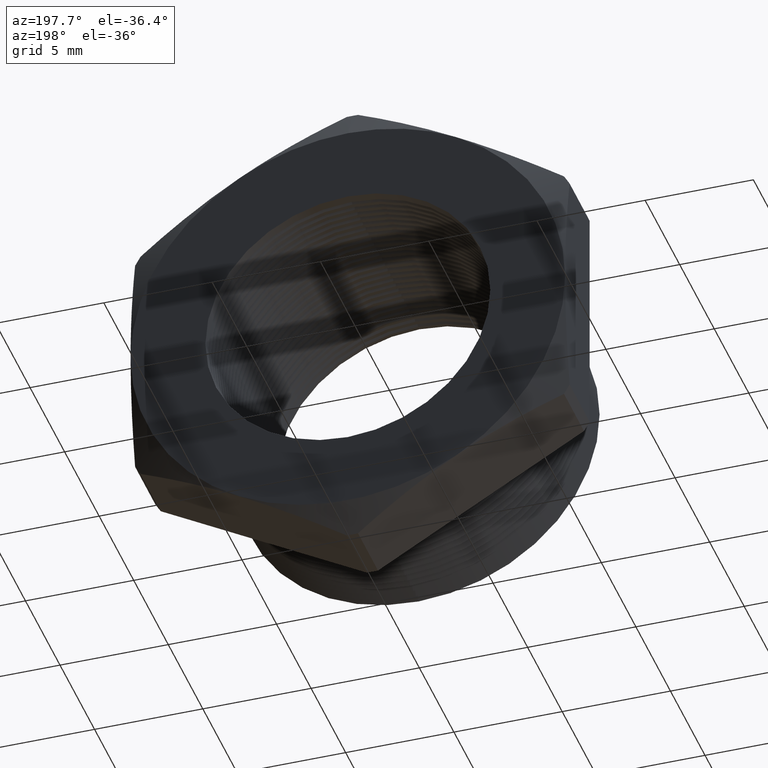
[diagram: clean part render]
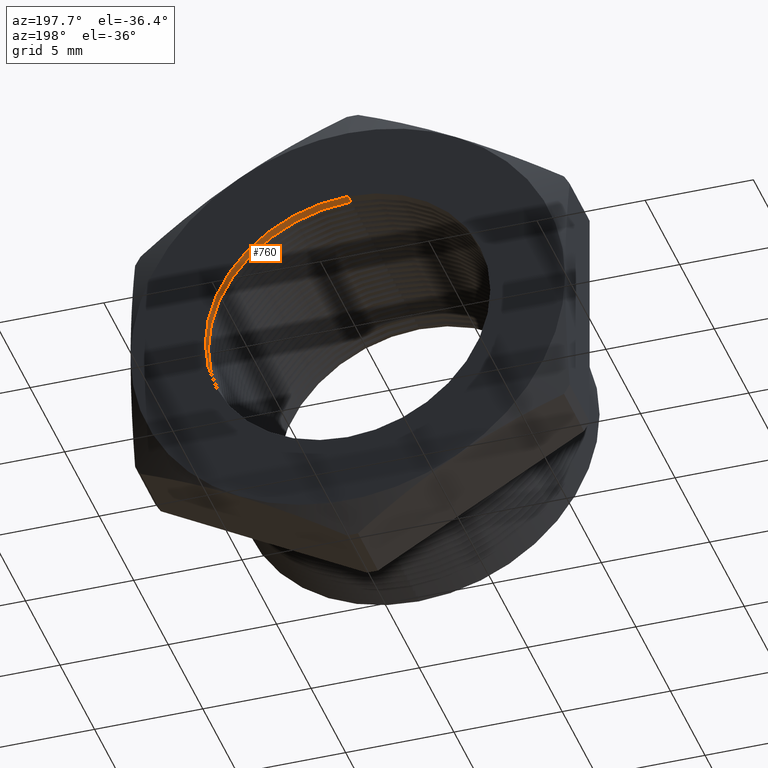
[diagram: same view with one face highlighted and labeled with its STEP entity id]
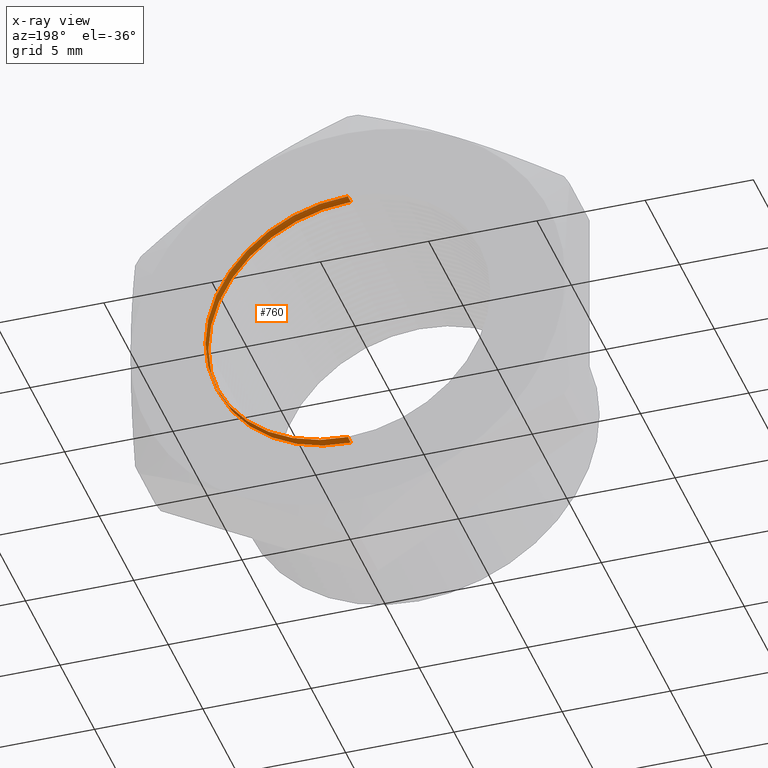
[diagram: x-ray of the same camera — body ghosted, the highlighted face saturated]
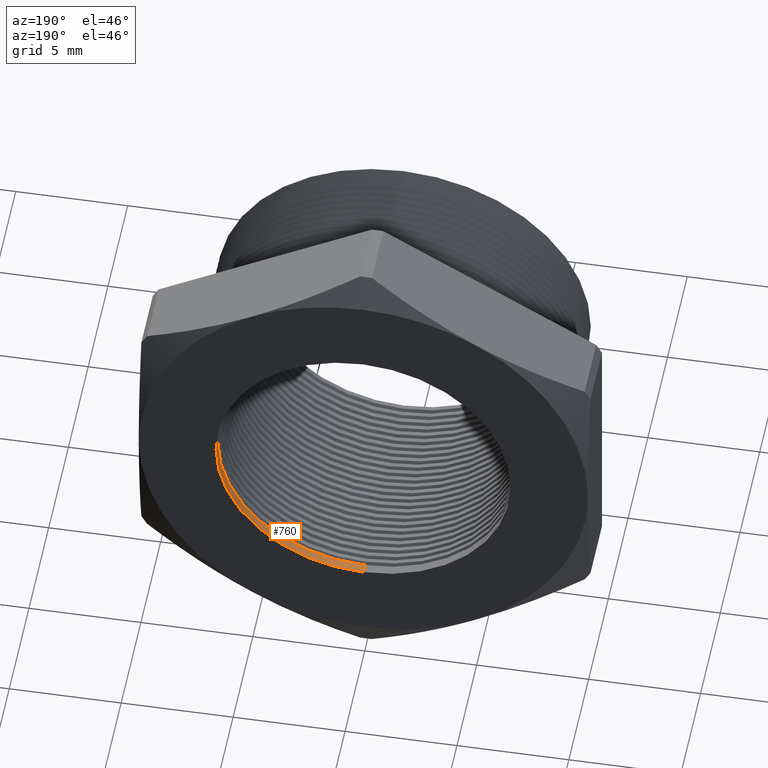
[diagram: same view with one face highlighted and labeled with its STEP entity id]
A machine part, auxiliary view. The second image highlights one B-rep face of the part: STEP entity #760.
The next image is the same camera in x-ray: the body ghosted, the highlighted face saturated — about 0% of this face is hidden behind the body in this view.
A second angle (auxiliary view) of the same face is appended — the face is thin or edge-on in the first view.
In plain terms, the highlighted cylindrical surface (partial cylindrical patch) has radius 6.5783 mm, axis along (-0, -1, -0).
Its self-contained STEP definition (entity closure, byte-faithful):
#155 = EDGE_CURVE ( 'NONE', #360, #386, #2777, .T. ) ;
#359 = VERTEX_POINT ( 'NONE', #3123 ) ;
#360 = VERTEX_POINT ( 'NONE', #3185 ) ;
#362 = EDGE_CURVE ( 'NONE', #359, #387, #3184, .T. ) ;
#386 = VERTEX_POINT ( 'NONE', #3199 ) ;
#387 = VERTEX_POINT ( 'NONE', #3198 ) ;
#760 = ADVANCED_FACE ( 'NONE', ( #3955 ), #3954, .F. ) ;
#761 = EDGE_LOOP ( 'NONE', ( #762, #763, #764, #765 ) ) ;
#762 = ORIENTED_EDGE ( 'NONE', *, *, #362, .F. ) ;
#763 = ORIENTED_EDGE ( 'NONE', *, *, #2448, .F. ) ;
#764 = ORIENTED_EDGE ( 'NONE', *, *, #155, .T. ) ;
#765 = ORIENTED_EDGE ( 'NONE', *, *, #766, .F. ) ;
#766 = EDGE_CURVE ( 'NONE', #387, #386, #3949, .T. ) ;
#2448 = EDGE_CURVE ( 'NONE', #360, #359, #6780, .T. ) ;
#2774 = DIRECTION ( 'NONE',  ( -0.0000000000000000000, -1.000000000000000000, -0.0000000000000000000 ) ) ;
#2775 = VECTOR ( 'NONE', #2774, 39.37007874015748100 ) ;
#2776 = CARTESIAN_POINT ( 'NONE',  ( 0.0000000000000000000, 0.0000000000000000000, -0.2589880461203001900 ) ) ;
#2777 = LINE ( 'NONE', #2776, #2775 ) ;
#3123 = CARTESIAN_POINT ( 'NONE',  ( 3.171688816986526800E-017, 0.4075548905829479200, 0.2589880461203001900 ) ) ;
#3181 = DIRECTION ( 'NONE',  ( -0.0000000000000000000, -1.000000000000000000, -0.0000000000000000000 ) ) ;
#3182 = VECTOR ( 'NONE', #3181, 39.37007874015748100 ) ;
#3183 = CARTESIAN_POINT ( 'NONE',  ( 3.171688816986526800E-017, 0.0000000000000000000, 0.2589880461203001900 ) ) ;
#3184 = LINE ( 'NONE', #3183, #3182 ) ;
#3185 = CARTESIAN_POINT ( 'NONE',  ( 0.0000000000000000000, 0.4075548905829479200, -0.2589880461203001900 ) ) ;
#3198 = CARTESIAN_POINT ( 'NONE',  ( 3.171688816986526800E-017, 0.3903219653570460000, 0.2589880461203001900 ) ) ;
#3199 = CARTESIAN_POINT ( 'NONE',  ( 0.0000000000000000000, 0.3903219653570460000, -0.2589880461203001900 ) ) ;
#3945 = DIRECTION ( 'NONE',  ( 0.0000000000000000000, 0.0000000000000000000, -1.000000000000000000 ) ) ;
#3946 = DIRECTION ( 'NONE',  ( -0.0000000000000000000, 1.000000000000000000, -0.0000000000000000000 ) ) ;
#3947 = CARTESIAN_POINT ( 'NONE',  ( 0.0000000000000000000, 0.3903219653570460000, 0.0000000000000000000 ) ) ;
#3948 = AXIS2_PLACEMENT_3D ( 'NONE', #3947, #3946, #3945 ) ;
#3949 = CIRCLE ( 'NONE', #3948, 0.2589880461203001900 ) ;
#3950 = DIRECTION ( 'NONE',  ( 0.0000000000000000000, 0.0000000000000000000, -1.000000000000000000 ) ) ;
#3951 = DIRECTION ( 'NONE',  ( -0.0000000000000000000, -1.000000000000000000, -0.0000000000000000000 ) ) ;
#3952 = CARTESIAN_POINT ( 'NONE',  ( 0.0000000000000000000, 0.0000000000000000000, 0.0000000000000000000 ) ) ;
#3953 = AXIS2_PLACEMENT_3D ( 'NONE', #3952, #3951, #3950 ) ;
#3954 = CYLINDRICAL_SURFACE ( 'NONE', #3953, 0.2589880461203001900 ) ;
#3955 = FACE_OUTER_BOUND ( 'NONE', #761, .T. ) ;
#6778 = CARTESIAN_POINT ( 'NONE',  ( 0.0000000000000000000, 0.4075548905829479200, 0.0000000000000000000 ) ) ;
#6779 = AXIS2_PLACEMENT_3D ( 'NONE', #6778, #6841, #6840 ) ;
#6780 = CIRCLE ( 'NONE', #6779, 0.2589880461203001900 ) ;
#6840 = DIRECTION ( 'NONE',  ( 0.0000000000000000000, 0.0000000000000000000, -1.000000000000000000 ) ) ;
#6841 = DIRECTION ( 'NONE',  ( -0.0000000000000000000, -1.000000000000000000, -0.0000000000000000000 ) ) ;